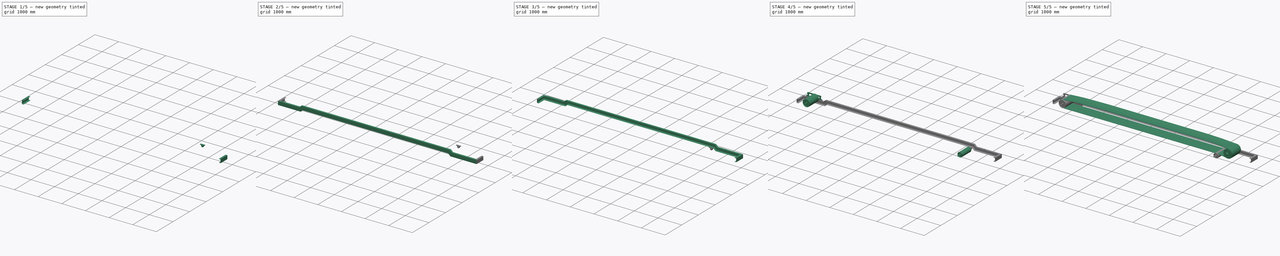
[diagram: build sequence overview — one tinted view per stage of 5, left to right]
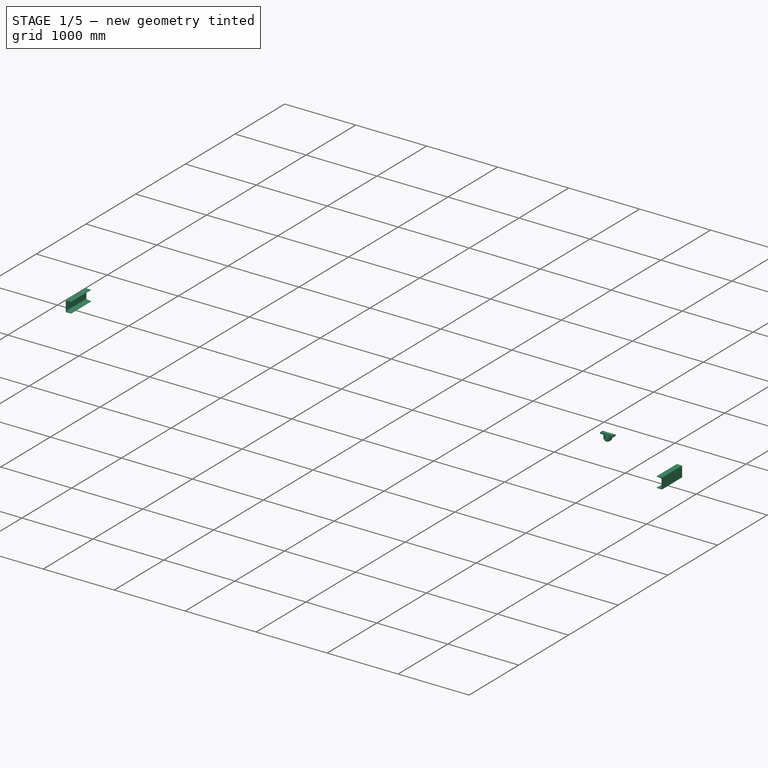
[diagram: stage 1 of 5 — iso view after this stage's code; geometry added in this stage tinted green]
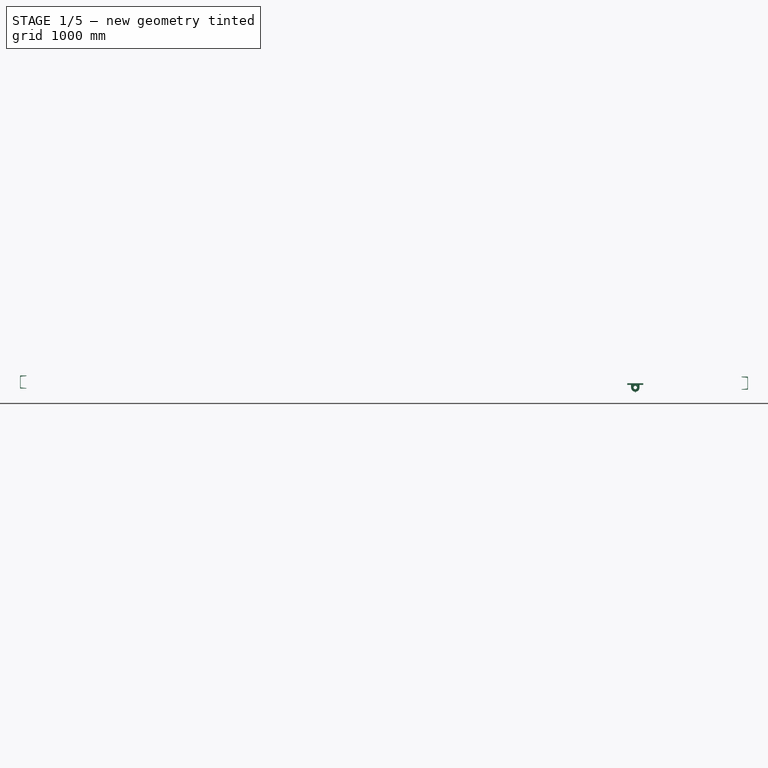
[diagram: stage 1 of 5 — front view after this stage's code; geometry added in this stage tinted green]
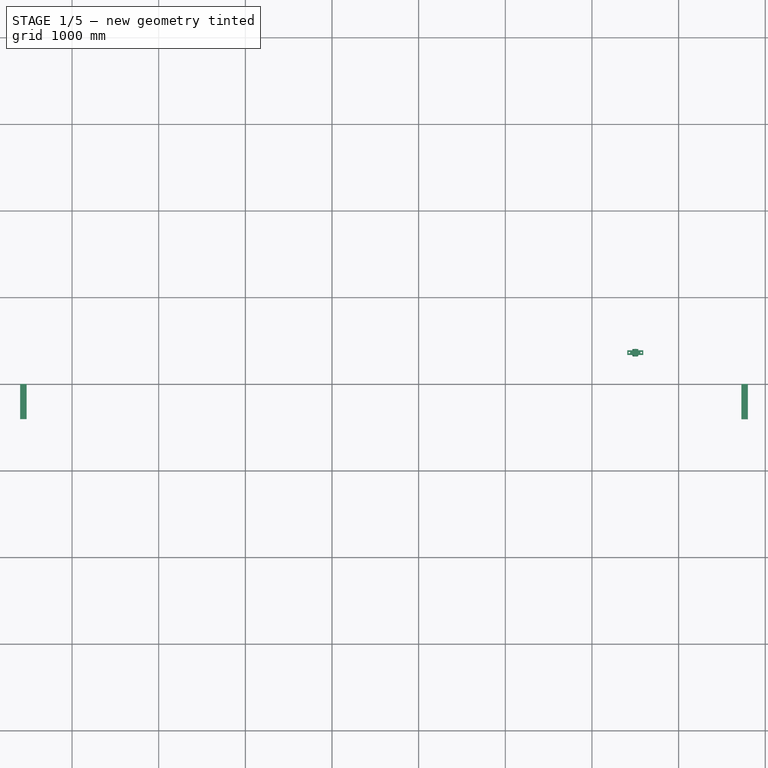
[diagram: stage 1 of 5 — top view after this stage's code; geometry added in this stage tinted green]
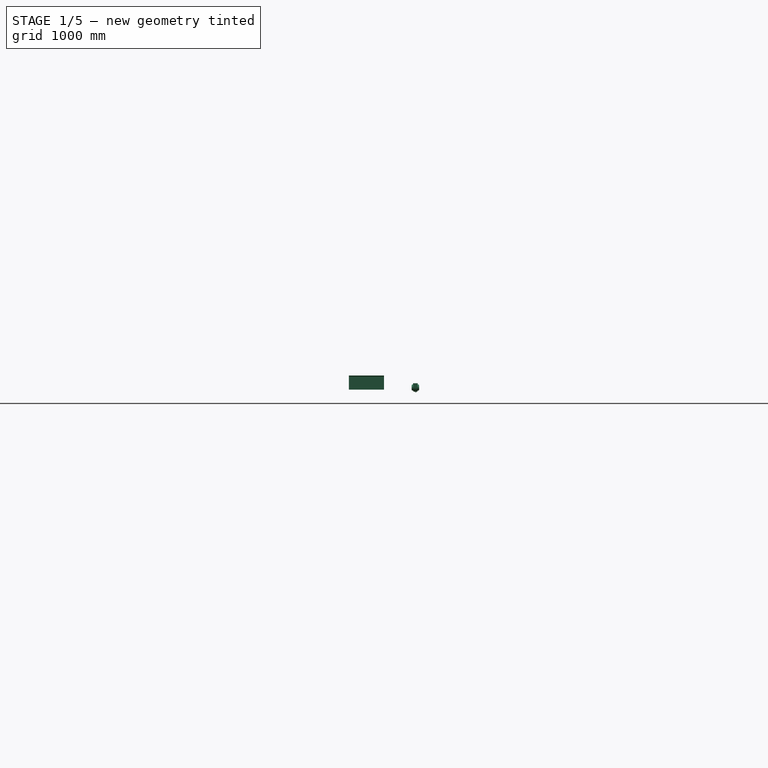
[diagram: stage 1 of 5 — right view after this stage's code; geometry added in this stage tinted green]
FCSTD DOCUMENT  (FreeCAD 0.21R33668 +26 (Git))
Label: BeltCv500_Assy_motorpully
License: All rights reserved
LicenseURL: http://en.wikipedia.org/wiki/All_rights_reserved
objects: Sketcher::SketchObject×13, Part::Extrusion×7, Part::Feature×6, Part::FeaturePython×5, PartDesign::Body×4, Part::Mirroring×3, Part::Sweep×2, App::Part×2, Part::MultiFuse×2, Spreadsheet::Sheet×1
note: 42 computed .brp shape members not serialized (recipe doc carries the construction recipe); baked Part::Feature solids carry a one-line shape summary decoded from their .brp

FEATURE [Part::FeaturePython] ChannelSteel  # WARN: FeaturePython — macro-defined, semantics opaque (R4)
  B = 75
  H = 150
  L = 1000
  Placement = pos=(-600,0,-249) rot=(0,0,1;0rad)
  Solid = false
  g0 = 7.85
  mass = 0
  size = 3
  standard = SS
  t1 = 6.5
  t2 = 10
FEATURE [Part::Extrusion] Extrude006
  Base = -> ChannelSteel
  Dir = (0,1,0)
  DirMode = 2
  FaceMakerClass = Part::FaceMakerBullseye
  LengthFwd = 405
  LengthRev = 0
  Reversed = true
  Solid = false
  Symmetric = false
  expr: LengthFwd = Spreadsheet.B12 / 2
FEATURE [Part::FeaturePython] ChannelSteel002  # WARN: FeaturePython — macro-defined, semantics opaque (R4)
  B = 75
  H = 150
  L = 1000
  Placement = pos=(7800,0,-112) rot=(0,1,0;3.14159rad)
  Solid = false
  g0 = 7.85
  mass = 0
  size = 3
  standard = SS
  t1 = 6.5
  t2 = 10
  expr: .Placement.Base.x = Spreadsheet.C0 + 800
FEATURE [Part::Extrusion] Extrude007
  Base = -> ChannelSteel002
  Dir = (0,1,0)
  DirMode = 2
  FaceMakerClass = Part::FaceMakerBullseye
  LengthFwd = 405
  LengthRev = 0
  Reversed = true
  Solid = false
  Symmetric = false
FEATURE [Part::Mirroring] Part__Mirroring001  label="UCP208FC (Mirror #3)"
  Base = (0,0,0)
  Normal = (0,1,0)
  Source = -> Part__Feature003
FEATURE [Part::Feature] Carrier_500
  Placement = pos=(1000,-395,18) rot=(0,0,1;1.5708rad)
  shape: bbox 190 x 790 x 240.8 mm, 128 faces, 3 solids (baked)
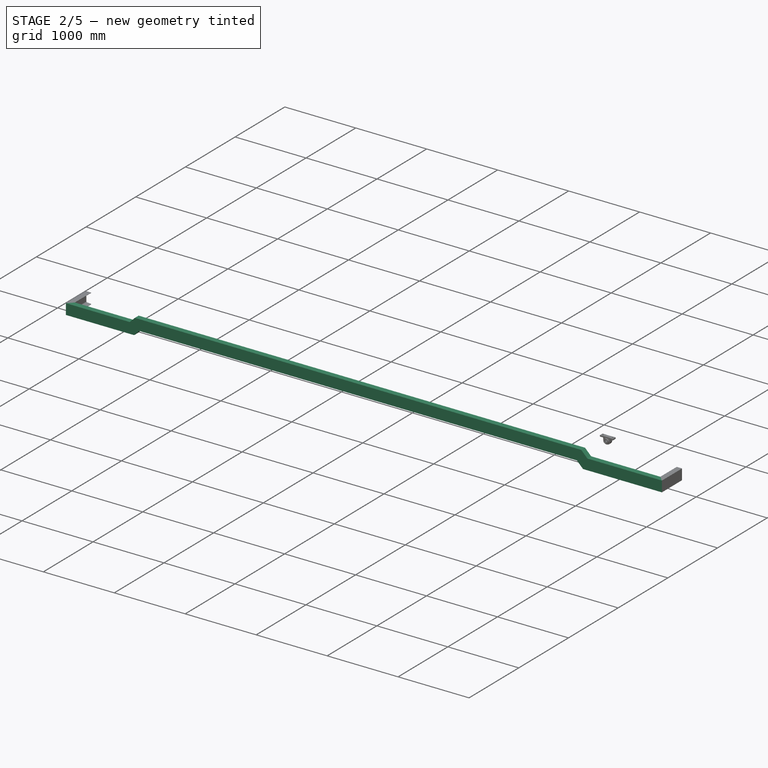
[diagram: stage 2 of 5 — iso view after this stage's code; geometry added in this stage tinted green]
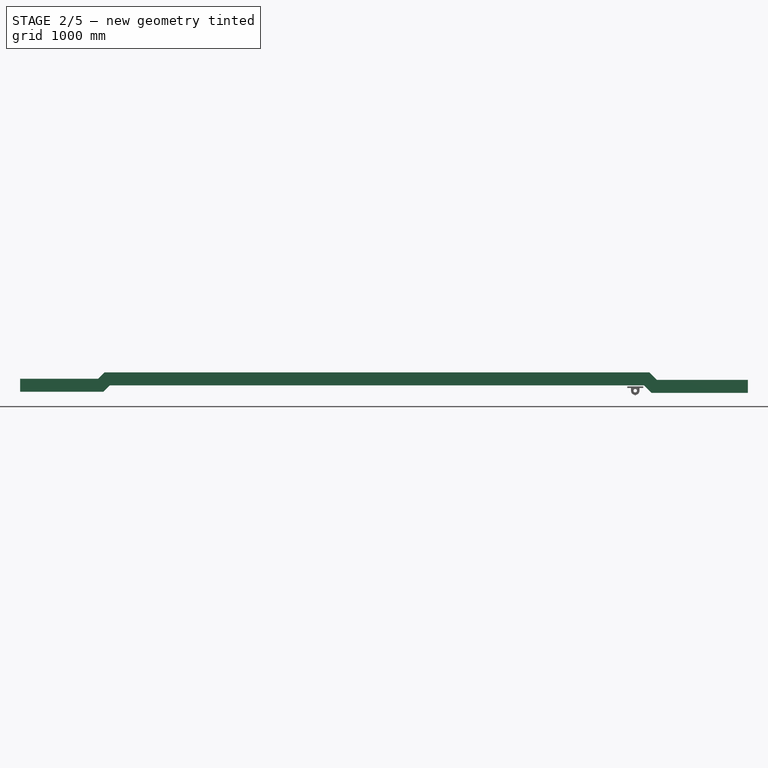
[diagram: stage 2 of 5 — front view after this stage's code; geometry added in this stage tinted green]
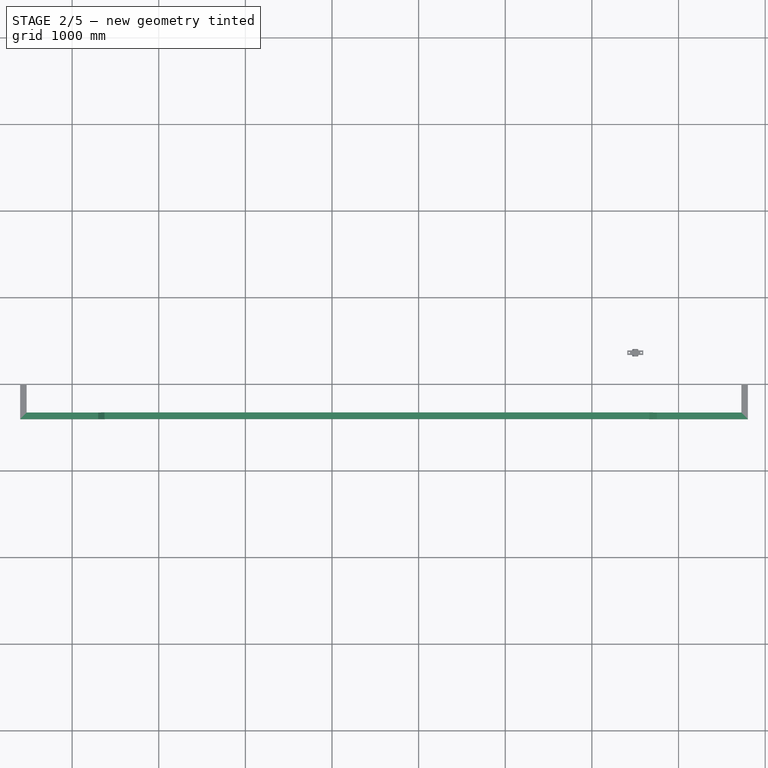
[diagram: stage 2 of 5 — top view after this stage's code; geometry added in this stage tinted green]
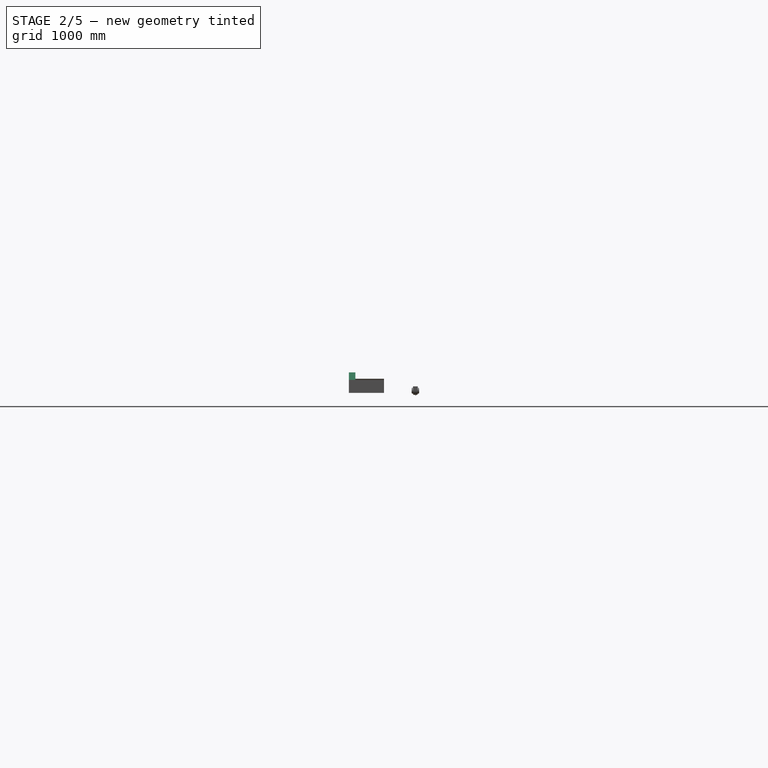
[diagram: stage 2 of 5 — right view after this stage's code; geometry added in this stage tinted green]
FEATURE [PartDesign::Body] Body003
  Origin = -> Origin
FEATURE [Sketcher::SketchObject] Sketch011
  FullyConstrained = true
  MapMode = 5
  Placement = pos=(0,0,0) rot=(1,0,0;1.5708rad)
  Support = -> [XZ_Plane]
  expr: Constraints[15] = Spreadsheet.C0
  sketch-geometry (6):
    g0: LineSegment StartX=-600 StartY=-99 StartZ=0 EndX=300 EndY=-99 EndZ=0
    g1: LineSegment StartX=300 StartY=-99 StartZ=0 EndX=373 EndY=-26 EndZ=0
    g2: LineSegment StartX=373 StartY=-26 StartZ=0 EndX=6664 EndY=-26 EndZ=0
    g3: LineSegment StartX=6664 StartY=-26 StartZ=0 EndX=6750 EndY=-112 EndZ=0
    g4: LineSegment StartX=6750 StartY=-112 StartZ=0 EndX=7800 EndY=-112 EndZ=0
    g5: LineSegment StartX=0 StartY=0 StartZ=0 EndX=7000 EndY=0 EndZ=0
  constraints (19):
    c: Horizontal(g0)
    c: Coincident(g0,g1)
    c: Coincident(g1,g2)
    c: Horizontal(g2)
    c: Coincident(g2,g3)
    c: Coincident(g3,g4)
    c: Horizontal(g4)
    c: DistanceX(g0,g-1) = 600
    c: DistanceX(g-1,g0) = 300
    c: Angle(g1,g0) = 2.35619
    c: DistanceY(g0,g-1) = 99
    c: Angle(g4,g3) = 2.35619
    c: PointOnObject(g5,g-1)
    c: Coincident(g5,g-1)
    c: Distance(g5,g4) = 112
    c: DistanceX(g5,g5) = 7000
    c: DistanceX(g5,g4) = 800
    c: DistanceX(g3,g5) = 250
    c: DistanceY(g0,g1) = 73
FEATURE [Part::Sweep] Sweep001
  Frenet = false
  Placement = pos=(0,-405,0) rot=(0,0,1;0rad)
  Sections = -> [ChannelSteel001]
  Solid = true
  Spine = -> Sketch011 [Edge1,Edge2,Edge3,Edge4,Edge5]
  Transition = 1
  expr: .Placement.Base.y = -Spreadsheet.B12 / 2
FEATURE [Part::MultiFuse] Fusion
  Refine = true
  Shapes = -> [Sweep001,Extrude006]
FEATURE [Part::MultiFuse] Fusion001
  Refine = true
  Shapes = -> [Fusion,Extrude007]
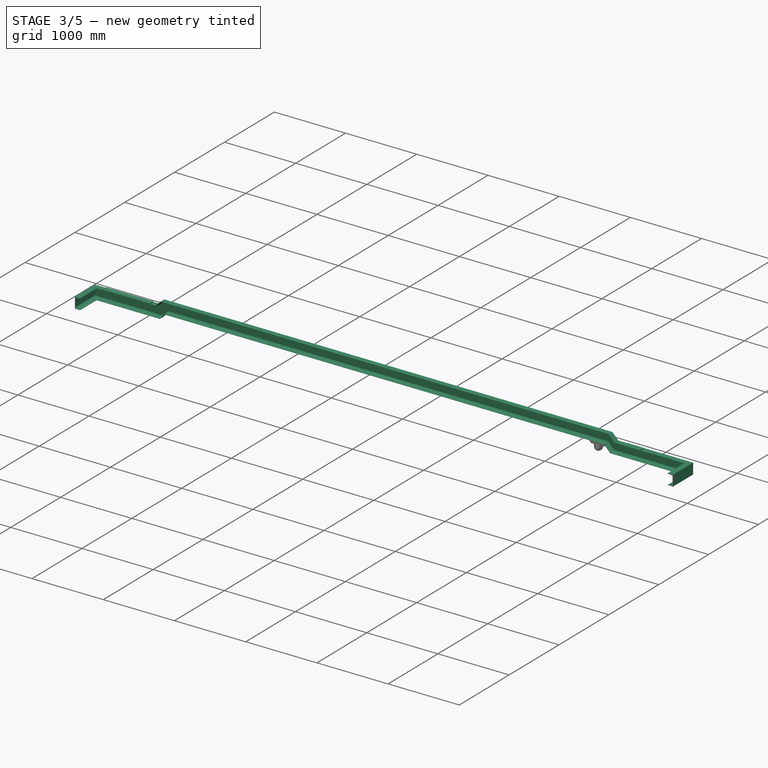
[diagram: stage 3 of 5 — iso view after this stage's code; geometry added in this stage tinted green]
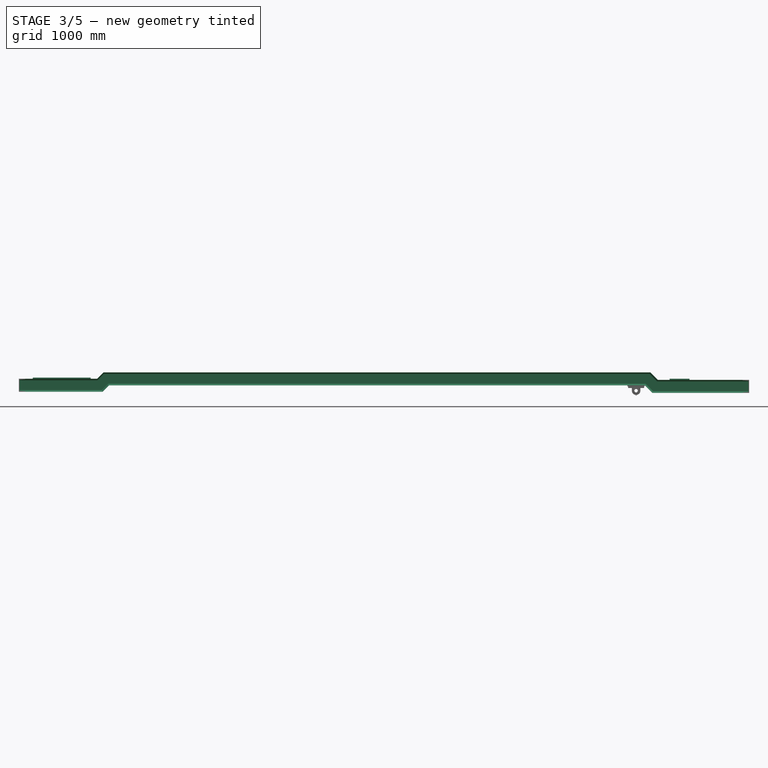
[diagram: stage 3 of 5 — front view after this stage's code; geometry added in this stage tinted green]
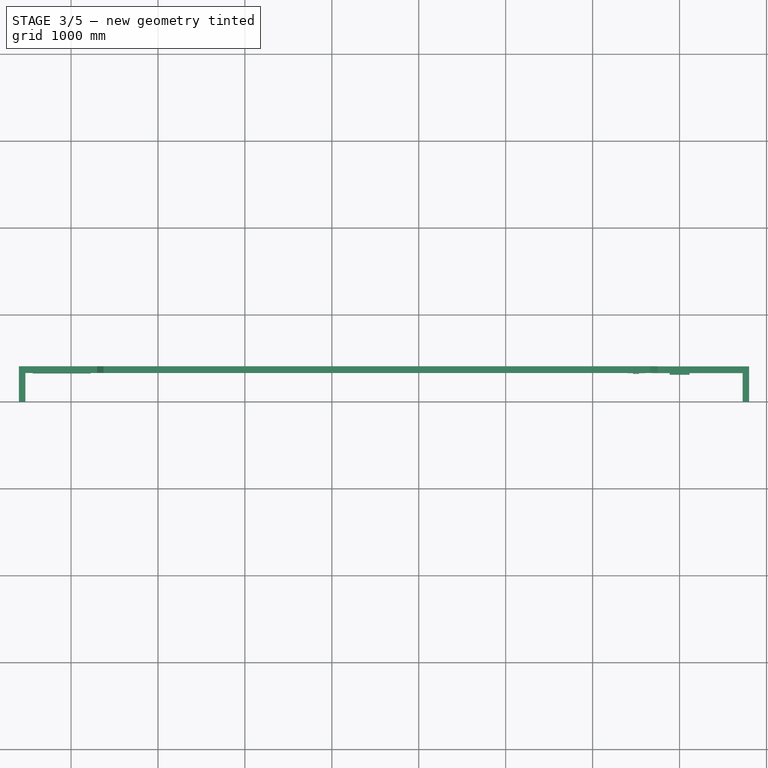
[diagram: stage 3 of 5 — top view after this stage's code; geometry added in this stage tinted green]
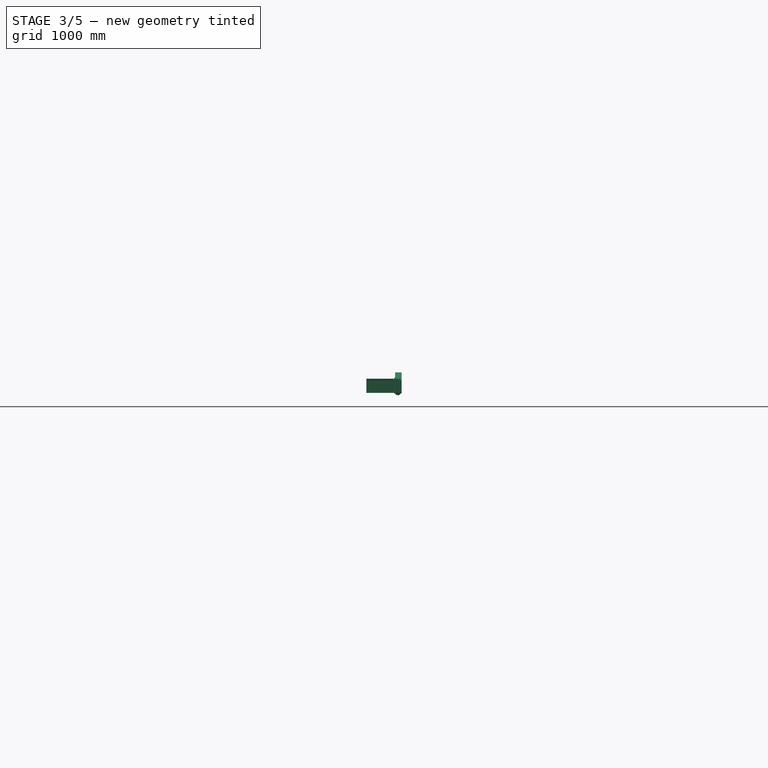
[diagram: stage 3 of 5 — right view after this stage's code; geometry added in this stage tinted green]
FEATURE [Sketcher::SketchObject] Sketch012
  FullyConstrained = true
  MapMode = 5
  Placement = pos=(0,-405,-99) rot=(0,0,1;0rad)
  Support = -> [Sweep001]
  sketch-geometry (4):
    g0: LineSegment StartX=-440 StartY=8 StartZ=0 EndX=225 EndY=8 EndZ=0
    g1: LineSegment StartX=225 StartY=8 StartZ=0 EndX=225 EndY=83 EndZ=0
    g2: LineSegment StartX=225 StartY=83 StartZ=0 EndX=-440 EndY=83 EndZ=0
    g3: LineSegment StartX=-440 StartY=83 StartZ=0 EndX=-440 EndY=8 EndZ=0
  constraints (12):
    c: Coincident(g0,g1)
    c: Coincident(g1,g2)
    c: Coincident(g2,g3)
    c: Coincident(g3,g0)
    c: Horizontal(g0)
    c: Horizontal(g2)
    c: Vertical(g1)
    c: Vertical(g3)
    c: DistanceY(g1,g1) = 75
    c: DistanceY(g-1,g0) = 8
    c: DistanceX(g-1,g0) = 225
    c: DistanceX(g0,g0) = 665
FEATURE [Part::Extrusion] Extrude003
  Base = -> Sketch012
  Dir = (0,0,1)
  DirMode = 2
  FaceMakerClass = Part::FaceMakerBullseye
  LengthFwd = 12
  LengthRev = 0
  Solid = true
  Symmetric = false
FEATURE [Sketcher::SketchObject] Sketch013
  FullyConstrained = false
  MapMode = 5
  Placement = pos=(0,-405,-112) rot=(0,0,1;0rad)
  Support = -> [Sweep001]
  expr: Constraints[9] = Spreadsheet.C0
  sketch-geometry (5):
    g0: LineSegment StartX=6885 StartY=16.2326 StartZ=0 EndX=7115 EndY=16.2326 EndZ=0
    g1: LineSegment StartX=7115 StartY=16.2326 StartZ=0 EndX=7115 EndY=96.2326 EndZ=0
    g2: LineSegment StartX=7115 StartY=96.2326 StartZ=0 EndX=6885 EndY=96.2326 EndZ=0
    g3: LineSegment StartX=6885 StartY=96.2326 StartZ=0 EndX=6885 EndY=16.2326 EndZ=0
    g4: LineSegment StartX=7000 StartY=284.577 StartZ=0 EndX=7000 EndY=-153.677 EndZ=0
  constraints (13):
    c: Coincident(g0,g1)
    c: Coincident(g1,g2)
    c: Coincident(g2,g3)
    c: Coincident(g3,g0)
    c: Horizontal(g0)
    c: Horizontal(g2)
    c: Vertical(g1)
    c: Vertical(g3)
    c: Vertical(g4)
    c: DistanceX(g-2,g4) = 7000
    c: DistanceY(g1,g1) = 80
    c: DistanceX(g0,g0) = 230
    c: DistanceX(g4,g0) = 115
FEATURE [Part::Extrusion] Extrude004
  Base = -> Sketch013
  Dir = (0,0,1)
  DirMode = 2
  FaceMakerClass = Part::FaceMakerBullseye
  LengthFwd = 12
  LengthRev = 0
  Solid = true
  Symmetric = false
FEATURE [Sketcher::SketchObject] Sketch014
  FullyConstrained = false
  MapMode = 5
  Placement = pos=(0,-405,-176) rot=(1,0,0;3.14159rad)
  Support = -> [Sweep001]
  expr: Constraints[13] = Spreadsheet.C0 - 500
  sketch-geometry (5):
    g0: LineSegment StartX=6400 StartY=-9 StartZ=0 EndX=6600 EndY=-9 EndZ=0
    g1: LineSegment StartX=6600 StartY=-9 StartZ=0 EndX=6600 EndY=-79 EndZ=0
    g2: LineSegment StartX=6600 StartY=-79 StartZ=0 EndX=6400 EndY=-79 EndZ=0
    g3: LineSegment StartX=6400 StartY=-79 StartZ=0 EndX=6400 EndY=-9 EndZ=0
    g4: LineSegment StartX=6500 StartY=33.7597 StartZ=0 EndX=6500 EndY=-194.785 EndZ=0
  constraints (14):
    c: Coincident(g0,g1)
    c: Coincident(g1,g2)
    c: Coincident(g2,g3)
    c: Coincident(g3,g0)
    c: Horizontal(g0)
    c: Horizontal(g2)
    c: Vertical(g1)
    c: Vertical(g3)
    c: Vertical(g4)
    c: DistanceX(g0,g0) = 200
    c: DistanceY(g3,g3) = 70
    c: DistanceX(g4,g0) = 100
    c: DistanceY(g-1,g0) = -9
    c: DistanceX(g-1,g4) = 6500
FEATURE [Part::Extrusion] Extrude005
  Base = -> Sketch014
  Dir = (0,0,-1)
  DirMode = 2
  FaceMakerClass = Part::FaceMakerBullseye
  LengthFwd = 12
  LengthRev = 0
  Solid = true
  Symmetric = false
FEATURE [App::Part] Part  label="本体"
  Group = -> [Extrude004,Extrude003,Extrude005,Extrude006,Extrude007,ChannelSteel,ChannelSteel002,Fusion,ChannelSteel001,Sweep001,Sketch011,Sketch013,Sketch014,Sketch012,Fusion001]
  Origin = -> Origin006
FEATURE [Part::Mirroring] Part__Mirroring  label="本体 (Mirror #2)"
  Base = (0,0,0)
  Normal = (0,1,0)
  Source = -> Part
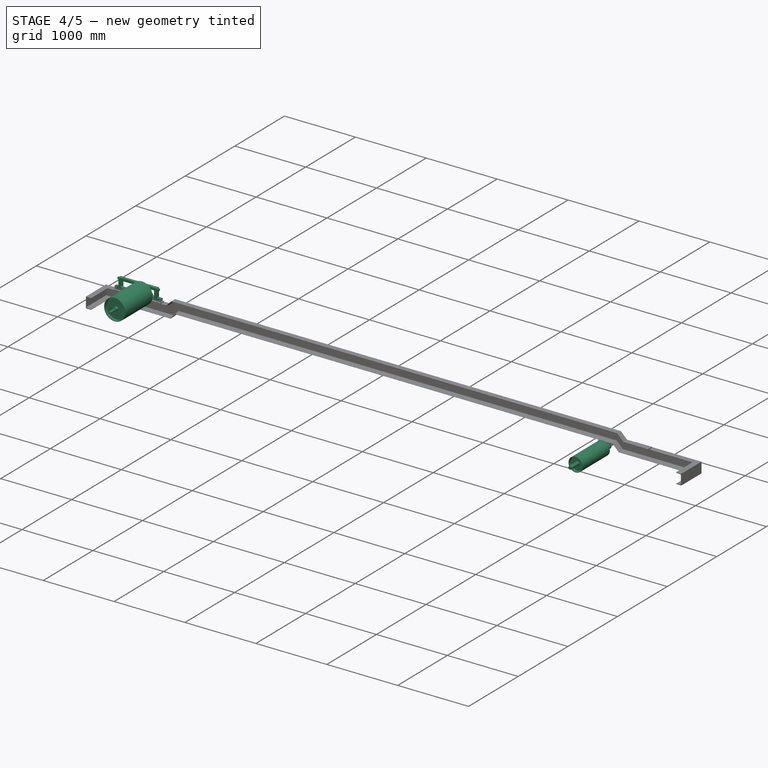
[diagram: stage 4 of 5 — iso view after this stage's code; geometry added in this stage tinted green]
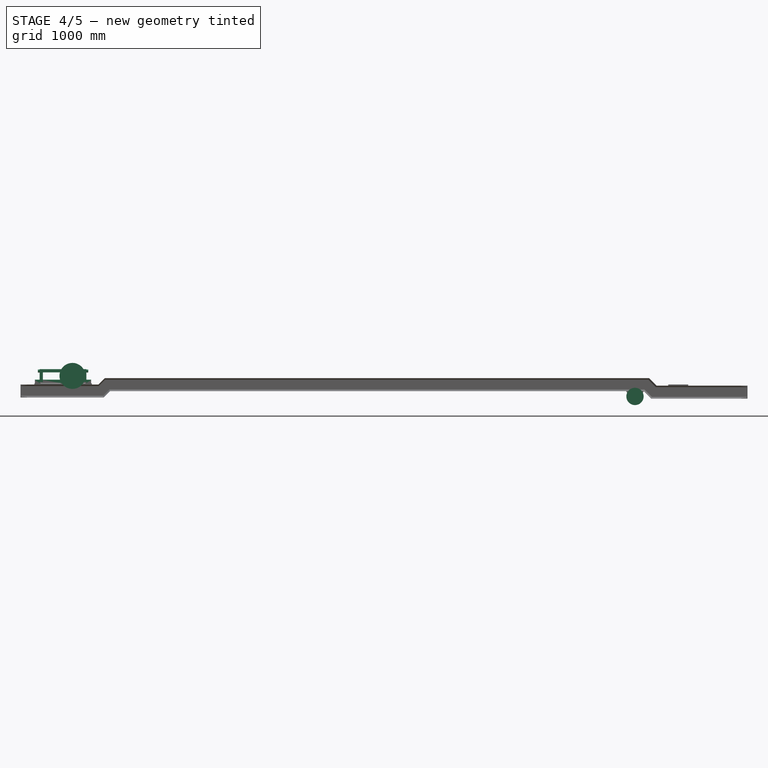
[diagram: stage 4 of 5 — front view after this stage's code; geometry added in this stage tinted green]
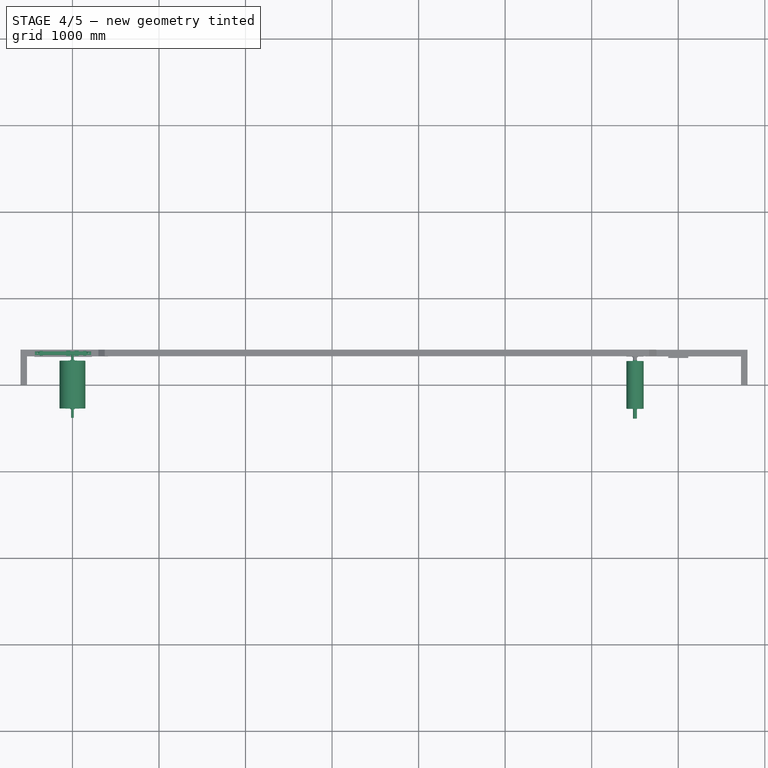
[diagram: stage 4 of 5 — top view after this stage's code; geometry added in this stage tinted green]
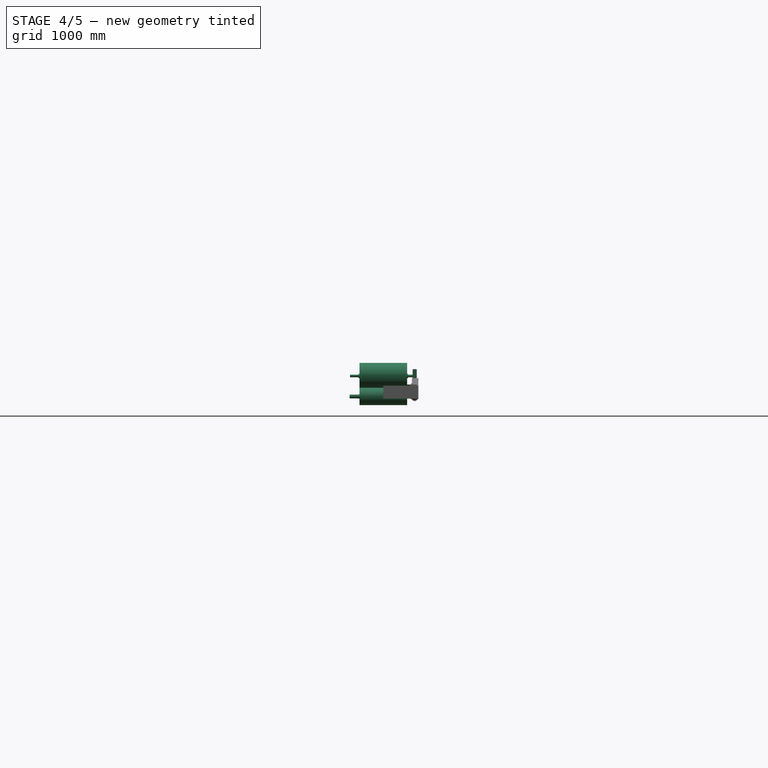
[diagram: stage 4 of 5 — right view after this stage's code; geometry added in this stage tinted green]
FEATURE [Part::FeaturePython] Take_upPulley  # WARN: FeaturePython — macro-defined, semantics opaque (R4)
  A = 50
  B = 100
  C = 570
  D = 300
  E = 0
  L = 550
  Placement = pos=(0,0,0) rot=(0,0,1;1.5708rad)
  d1 = 50
  d2 = 30
  d3 = 0
  t1 = 9
  t2 = 9
  t3 = 8
  t4 = 8
  expr: B = (Spreadsheet.B12 - (Spreadsheet.B0 + 70)) / 2 - 20
  expr: C = Spreadsheet.B0 + 70
  expr: L = Spreadsheet.B0 + 50
FEATURE [Part::FeaturePython] BendPulley  # WARN: FeaturePython — macro-defined, semantics opaque (R4)
  A = 50
  B = 103.5
  C = 570
  D = 200
  E = 0
  L = 550
  Placement = pos=(6500,1.79e-13,-237.18) rot=(0,0,-1;1.5708rad)
  d1 = 50
  d2 = 45
  d3 = 0
  t1 = 9
  t2 = 9
  t3 = 8
  t4 = 8
  expr: .Placement.Base.x = Spreadsheet.C0 - 500
  expr: C = L + 20
  expr: L = Spreadsheet.B0 + 50
FEATURE [Part::Feature] Part__Feature003  label="UCP208FC"
  Placement = pos=(6500,-362,-237.18) rot=(0,0.707107,-0.707107;3.14159rad)
  shape: bbox 184 x 86 x 106.1 mm, 117 faces (baked)
  expr: .Placement.Base.x = Spreadsheet.C0 - 500
FEATURE [PartDesign::Body] Body001
  Origin = -> Origin004
  Placement = pos=(6652,-620.5,-5.82e-14) rot=(0,0.707107,-0.707107;3.14159rad)
  expr: .Placement.Base.x = Spreadsheet.C0 + 152 - 500
FEATURE [Sketcher::SketchObject] Sketch010
  FullyConstrained = true
  MapMode = 5
  Placement = pos=(295,0,0) rot=(1,0,0;1.5708rad)
  Support = -> [Part__Feature002]
FEATURE [PartDesign::Body] Body002
  Origin = -> Origin005
  Placement = pos=(0,-405,0) rot=(0,0,1;0rad)
  expr: .Placement.Base.y = -Spreadsheet.B12 / 2
FEATURE [Part::Mirroring] Mirror002  label="UCTL206J-300-0 (mirrored)"
  Base = (0,-1.42e-14,160)
  Normal = (0,-1,0)
  Source = -> UCTL206J_300_0
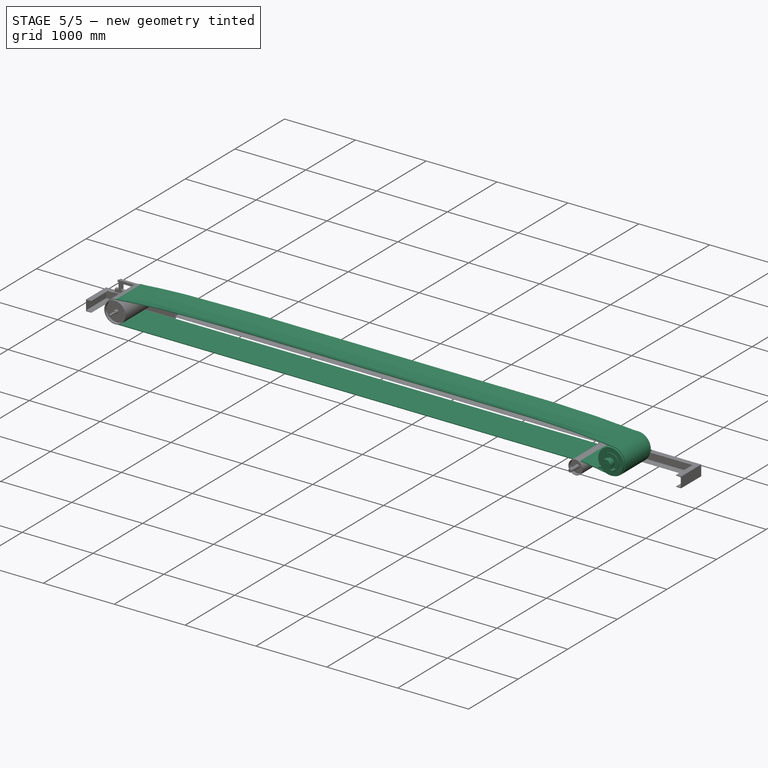
[diagram: stage 5 of 5 — iso view after this stage's code; geometry added in this stage tinted green]
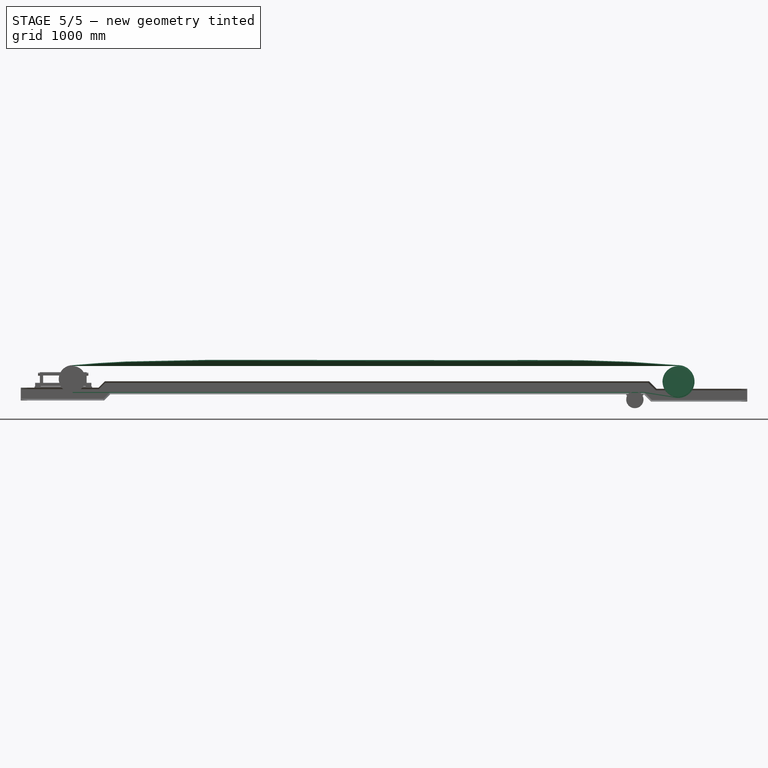
[diagram: stage 5 of 5 — front view after this stage's code; geometry added in this stage tinted green]
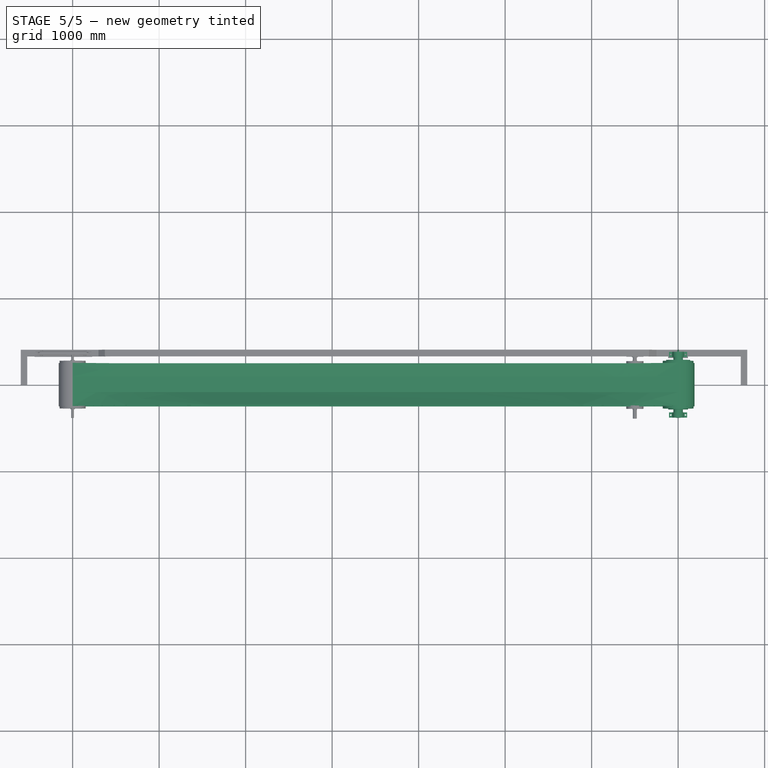
[diagram: stage 5 of 5 — top view after this stage's code; geometry added in this stage tinted green]
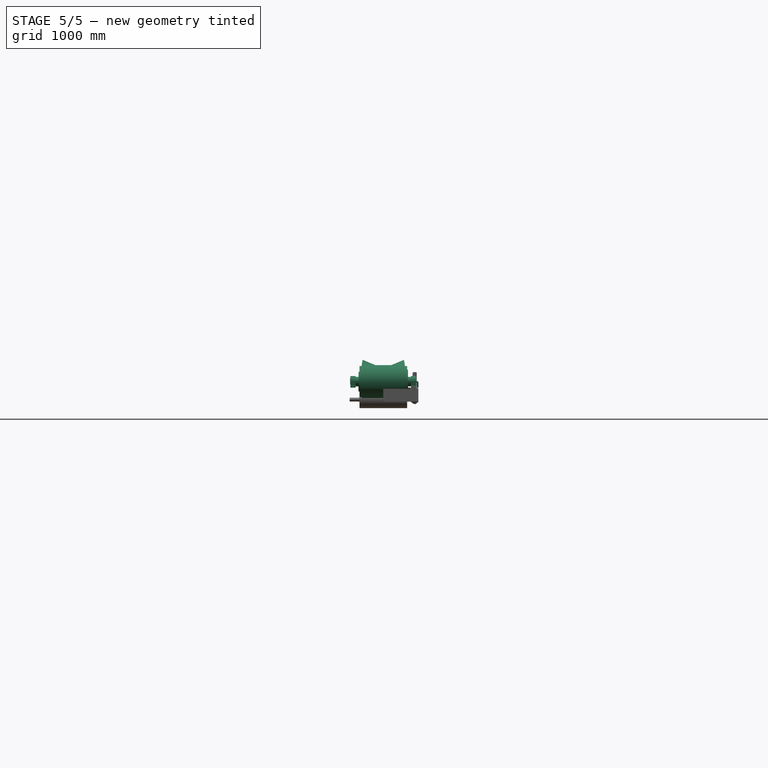
[diagram: stage 5 of 5 — right view after this stage's code; geometry added in this stage tinted green]
FEATURE [Sketcher::SketchObject] Sketch
  FullyConstrained = true
  Placement = pos=(0,0,0) rot=(0.57735,0.57735,0.57735;2.0944rad)
  expr: Constraints[1] = Spreadsheet.B0
  expr: Constraints[2] = Spreadsheet.D0 / 2
  sketch-geometry (1):
    g0: LineSegment StartX=-250 StartY=180 StartZ=0 EndX=250 EndY=180 EndZ=0
  constraints (3):
    c: Symmetric(g0,g0,g-2)
    c: DistanceX(g0,g0) = 500
    c: Distance(g-1,g0) = 180
FEATURE [Sketcher::SketchObject] Sketch001
  FullyConstrained = true
  Placement = pos=(7000,0,0) rot=(0.57735,0.57735,0.57735;2.0944rad)
  expr: .Placement.Base.x = Spreadsheet.C0
  expr: Constraints[1] = Spreadsheet.B0
  expr: Constraints[2] = Spreadsheet.D0 / 2
  sketch-geometry (1):
    g0: LineSegment StartX=-250 StartY=180 StartZ=0 EndX=250 EndY=180 EndZ=0
  constraints (3):
    c: Symmetric(g0,g0,g-2)
    c: DistanceX(g0,g0) = 500
    c: Distance(g-1,g0) = 180
FEATURE [Sketcher::SketchObject] Sketch002
  FullyConstrained = true
  Placement = pos=(1000,0,0) rot=(0.57735,0.57735,0.57735;2.0944rad)
  expr: Constraints[5] = Spreadsheet.b2
  expr: Constraints[6] = Spreadsheet.b2
  expr: Constraints[7] = Spreadsheet.D0 / 2
  expr: Constraints[8] = Spreadsheet.b1
  sketch-geometry (3):
    g0: LineSegment StartX=-240.351 StartY=234.723 StartZ=0 EndX=-90 EndY=180 EndZ=0
    g1: LineSegment StartX=-90 StartY=180 StartZ=0 EndX=90 EndY=180 EndZ=0
    g2: LineSegment StartX=90 StartY=180 StartZ=0 EndX=240.351 EndY=234.723 EndZ=0
  constraints (9):
    c: Coincident(g0,g1)
    c: Coincident(g1,g2)
    c: Angle(g2,g1) = 2.79253
    c: Angle(g1,g0) = 2.79253
    c: Symmetric(g1,g0,g-2)
    c: Distance(g2) = 160
    c: Distance(g0) = 160
    c: DistanceY(g-1,g1) = 180
    c: DistanceX(g1,g1) = 180
FEATURE [Sketcher::SketchObject] Sketch003
  FullyConstrained = true
  Placement = pos=(6000,0,0) rot=(0.57735,0.57735,0.57735;2.0944rad)
  expr: .Placement.Base.x = Spreadsheet.C0 - 1000
  expr: Constraints[5] = Spreadsheet.b2
  expr: Constraints[6] = Spreadsheet.b2
  expr: Constraints[7] = Spreadsheet.D0 / 2
  expr: Constraints[8] = Spreadsheet.b1
  sketch-geometry (3):
    g0: LineSegment StartX=-240.351 StartY=234.723 StartZ=0 EndX=-90 EndY=180 EndZ=0
    g1: LineSegment StartX=-90 StartY=180 StartZ=0 EndX=90 EndY=180 EndZ=0
    g2: LineSegment StartX=90 StartY=180 StartZ=0 EndX=240.351 EndY=234.723 EndZ=0
  constraints (9):
    c: Coincident(g0,g1)
    c: Coincident(g1,g2)
    c: Angle(g2,g1) = 2.79253
    c: Angle(g1,g0) = 2.79253
    c: Symmetric(g1,g0,g-2)
    c: Distance(g2) = 160
    c: Distance(g0) = 160
    c: DistanceY(g-1,g1) = 180
    c: DistanceX(g1,g1) = 180
FEATURE [Sketcher::SketchObject] Sketch004
  FullyConstrained = true
  Placement = pos=(7000,0,0) rot=(1,0,0;1.5708rad)
  expr: .Placement.Base.x = Spreadsheet.C0
  expr: Constraints[0] = Spreadsheet.D0
  expr: Constraints[12] = Spreadsheet.C0
  expr: Constraints[14] = Spreadsheet.Ls
  expr: Constraints[2] = Spreadsheet.d1
  expr: Constraints[8] = Spreadsheet.d2 / 2
  sketch-geometry (6):
    g0: ArcOfCircle CenterX=0 CenterY=0 CenterZ=0 NormalX=0 NormalY=0 NormalZ=1 AngleXU=0 Radius=180 StartAngle=4.55494 EndAngle=7.85398
    g1: ArcOfCircle CenterX=-7000 CenterY=30 CenterZ=0 NormalX=0 NormalY=0 NormalZ=1 AngleXU=0 Radius=150 StartAngle=1.5708 EndAngle=4.71239
    g2: LineSegment StartX=-7000 StartY=180 StartZ=0 EndX=0 EndY=180 EndZ=0
    g3: LineSegment StartX=-28.2248 StartY=-177.773 StartZ=0 EndX=-384.32 EndY=-121.237 EndZ=0
    g4: LineSegment StartX=-400 StartY=-120 StartZ=0 EndX=-7000 EndY=-120 EndZ=0
    g5: ArcOfCircle CenterX=-400 CenterY=-220 CenterZ=0 NormalX=0 NormalY=0 NormalZ=1 AngleXU=0 Radius=100 StartAngle=1.41334 EndAngle=1.5708
  constraints (17):
    c: Diameter(g0) = 360
    c: Coincident(g-1,g0)
    c: Diameter(g1) = 300
    c: Horizontal(g2)
    c: PointOnObject(g3,g0)
    c: Horizontal(g4)
    c: Tangent(g3,g5) = -1.5708
    c: Tangent(g4,g5) = -1.5708
    c: Radius(g5) = 100
    c: Coincident(g1,g4)
    c: Coincident(g0,g2)
    c: Tangent(g0,g3) = 1.5708
    c: DistanceX(g1,g0) = 7000
    c: Vertical(g0,g0)
    c: DistanceX(g5,g0) = 400
    c: Vertical(g1,g1)
    c: Tangent(g1,g2) = 1.5708
FEATURE [Sketcher::SketchObject] Sketch005
  FullyConstrained = true
  Placement = pos=(7000,0,-30) rot=(1,0,0;1.5708rad)
  expr: .Placement.Base.x = Spreadsheet.C0
  expr: Constraints[0] = Spreadsheet.D0
  expr: Constraints[10] = Spreadsheet.Ls
  expr: Constraints[20] = Spreadsheet.t0
  expr: Constraints[22] = Spreadsheet.t0
  expr: Constraints[29] = (Spreadsheet.D0 - Spreadsheet.d1) / 2
  expr: Constraints[2] = Spreadsheet.d1
  expr: Constraints[6] = Spreadsheet.d2 / 2
  expr: Constraints[8] = Spreadsheet.C0
  sketch-geometry (12):
    g0: ArcOfCircle CenterX=0 CenterY=0 CenterZ=0 NormalX=0 NormalY=0 NormalZ=1 AngleXU=0 Radius=180 StartAngle=4.55494 EndAngle=7.85398
    g1: ArcOfCircle CenterX=-7000 CenterY=30 CenterZ=0 NormalX=0 NormalY=0 NormalZ=1 AngleXU=0 Radius=150 StartAngle=1.5708 EndAngle=4.71239
    g2: LineSegment StartX=-28.2245 StartY=-177.773 StartZ=0 EndX=-384.32 EndY=-121.237 EndZ=0
    g3: LineSegment StartX=-400 StartY=-120 StartZ=0 EndX=-7000 EndY=-120 EndZ=0
    g4: ArcOfCircle CenterX=-400 CenterY=-220 CenterZ=0 NormalX=0 NormalY=0 NormalZ=1 AngleXU=0 Radius=100 StartAngle=1.41334 EndAngle=1.5708
    g5: ArcOfCircle CenterX=-7000 CenterY=30 CenterZ=0 NormalX=0 NormalY=0 NormalZ=1 AngleXU=0 Radius=160 StartAngle=1.5708 EndAngle=4.71239
    g6: LineSegment StartX=-7000 StartY=-130 StartZ=0 EndX=-400 EndY=-130 EndZ=0
    g7: ArcOfCircle CenterX=-400 CenterY=-220 CenterZ=0 NormalX=0 NormalY=0 NormalZ=1 AngleXU=0 Radius=90 StartAngle=1.41334 EndAngle=1.5708
    g8: LineSegment StartX=-385.888 StartY=-131.113 StartZ=0 EndX=-29.7927 EndY=-187.65 EndZ=0
    g9: ArcOfCircle CenterX=0 CenterY=0 CenterZ=0 NormalX=0 NormalY=0 NormalZ=1 AngleXU=0 Radius=190 StartAngle=4.55494 EndAngle=7.85398
    g10: LineSegment StartX=0 StartY=180 StartZ=0 EndX=0 EndY=190 EndZ=0
    g11: LineSegment StartX=-7000 StartY=180 StartZ=0 EndX=-7000 EndY=190 EndZ=0
  constraints (32):
    c: Diameter(g0) = 360
    c: Coincident(g-1,g0)
    c: Diameter(g1) = 300
    c: Horizontal(g3)
    c: Tangent(g2,g4) = -1.5708
    c: Tangent(g3,g4) = -1.5708
    c: Radius(g4) = 100
    c: Coincident(g1,g3)
    c: DistanceX(g1,g0) = 7000
    c: Vertical(g0,g0)
    c: DistanceX(g4,g0) = 400
    c: Vertical(g1,g1)
    c: Coincident(g5,g1)
    c: Tangent(g5,g6) = -1.5708
    c: Tangent(g6,g7) = 1.5708
    c: Tangent(g8,g9) = -1.5708
    c: PointOnObject(g9,g-2)
    c: Coincident(g10,g0)
    c: Coincident(g10,g9)
    c: Coincident(g9,g0)
    c: DistanceY(g10,g10) = 10
    c: Coincident(g4,g7)
    c: DistanceY(g5,g1) = 10
    c: Vertical(g1,g5)
    c: Coincident(g11,g1)
    c: Coincident(g11,g5)
    c: Tangent(g7,g8) = 1.5708
    c: Vertical(g1,g1)
    c: Parallel(g8,g2)
    c: DistanceY(g-1,g1) = 30
    c: Parallel(g6,g3)
    c: Coincident(g2,g0)
FEATURE [Sketcher::SketchObject] Sketch006
  FullyConstrained = true
  Placement = pos=(3500,0,0) rot=(0.57735,0.57735,0.57735;2.0944rad)
  expr: .Placement.Base.x = Spreadsheet.C0 / 2
  expr: Constraints[5] = Spreadsheet.b2
  expr: Constraints[6] = Spreadsheet.b2
  expr: Constraints[7] = Spreadsheet.D0 / 2
  expr: Constraints[8] = Spreadsheet.b1
  sketch-geometry (3):
    g0: LineSegment StartX=-240.351 StartY=234.723 StartZ=0 EndX=-90 EndY=180 EndZ=0
    g1: LineSegment StartX=-90 StartY=180 StartZ=0 EndX=90 EndY=180 EndZ=0
    g2: LineSegment StartX=90 StartY=180 StartZ=0 EndX=240.351 EndY=234.723 EndZ=0
  constraints (9):
    c: Coincident(g0,g1)
    c: Coincident(g1,g2)
    c: Angle(g2,g1) = 2.79253
    c: Angle(g1,g0) = 2.79253
    c: Symmetric(g1,g0,g-2)
    c: Distance(g2) = 160
    c: Distance(g0) = 160
    c: DistanceY(g-1,g1) = 180
    c: DistanceX(g1,g1) = 180
FEATURE [Part::Sweep] Sweep
  Frenet = false
  Sections = -> [Sketch,Sketch002,Sketch003,Sketch001,Sketch006]
  Solid = false
  Spine = -> Sketch004 [Edge2]
  Transition = 1
FEATURE [Part::Extrusion] Extrude002
  Base = -> Sweep
  Dir = (0,0,1)
  DirMode = 0
  FaceMakerClass = Part::FaceMakerBullseye
  LengthFwd = 10
  LengthRev = 0
  Placement = pos=(0,0,-30) rot=(0,0,1;0rad)
  Solid = false
  Symmetric = false
FEATURE [Spreadsheet::Sheet] Spreadsheet
  cells = A2='CenterDistance C0; B2(C0)=7000; A3='BeltWidth B0; B3(B0)=500; C3=400; D3=450; E3=500; F3=600; G3=700; H3=750; I3=800; J3=900; K3=1000; A4='Belt b1; B4(b1)=180; C4=145; D4=165; E4=180; F4=210; G4=250; H4=265; I4=280; J4=315; K4=345; A5='Belt b2; B5(b2)==(B3 - B4) / 2; C5==(C3 - C4) / 2; D5==(D3 - D4) / 2; E5==(E3 - E4) / 2; F5==(F3 - F4) / 2; G5==(G3 - G4) / 2; H5==(H3 - H4) / 2; I5==(I3 - I4) / 2; J5==(J3 - J4) / 2; K5==(K3 - K4) / 2; A6='BeltThickness t0; B6(t0)=10; C6=10; D6=10; E6=10; F6=10; G6=10; H6=10; I6=10; J6=10; K6=10; A7='HeadPullyDia D0; B7(D0)=360; C7=300; D7=300; E7=360; F7=360; G7=360; H7=460; I7=460; J7=520; K7=520; A8='TailPullyDia d1; B8(d1)=300; C8=260; D8=260; E8=300; F8=300; G8=300; H8=390; I8=390; J8=440; K8=440; A9='SnapPullyDia d2; B9(d2)=200; C9=200; D9=200; E9=200; F9=200; G9=200; H9=200; I9=200; J9=200; K9=200; A10='SnapPully Ls; B10(Ls)=400; C10=400; D10=400; E10=400; F10=500; G10=500; H10=500; I10=500; J10=500; K10=500; A11='SnapPully h0; B11(h0)=160; C11=180; D11=180; E11=160; F11=180; G11=180; H11=180; I11=180; J11=180; K11=180; A12='hontaihaba W; B12=810; C12=710; D12=760; E12=810; F12=910; G12=910; H12=910; I12=910; J12=910; K12=910; A13='hontai _h; B13=103.5; C13=103.5; D13=103.5; E13=103.5; F13=103.5; G13=103.5; H13=103.5; I13=103.5; J13=103.5; K13=103.5; A14='hontai_z; B14=16; C14=16; D14=16; E14=16; F14=16; G14=16; H14=16; I14=16; J14=16; K14=16; A15='takeup_x; B15=-403.47; C15=-403.47; D15=-403.47; E15=-403.47; F15=-403.47; G15=-403.47; H15=-403.47; I15=-403.47; J15=-403.47; K15=-403.47; A16='takeup_y; B16=-362.8; C16=-362.8; D16=-362.8; E16=-362.8; F16=-410; G16=-410; H16=-410; I16=-410; J16=-410; K16=-410; A17='takeup_z; B17=-87; C17=-87; D17=-87; E17=-87; F17=-57; G17=-57; H17=-57; I17=-57; J17=-57; K17=-57; A18='carrierPitch  cp; B18=1000; C18=1000; D18=1000; E18=1000; F18=1000; G18=1000; H18=1000; I18=1000; J18=1000; K18=1000; A19='returnPitch rp; B19=1500; C19=1500; D19=1500; E19=1500; F19=1500; G19=1500; H19=1500; I19=1500; J19=1500; K19=1500
FEATURE [Part::FeaturePython] CPM2_4145  # WARN: FeaturePython — macro-defined, semantics opaque (R4)
  A = 550
  B1 = 500
  B2 = 600
  C = 70
  D = 360
  D1 = 356
  D2 = 228
  D3 = 278
  E = 170
  F = 0
  G1 = 30
  G2 = 30
  H = 33
  L = 863
  M = 210
  N1 = 60
  N2 = 60
  P = 75
  Placement = pos=(7000,0,-30) rot=(0,0,1;1.5708rad)
  R = 20
  a = 11
  b = 11
  d = 18
  key = 5
  expr: .Placement.Base.x = Spreadsheet.C0
FEATURE [Sketcher::SketchObject] Sketch007
  FullyConstrained = true
  MapMode = 5
  Placement = pos=(0,0,14) rot=(1,0,0;1.5708rad)
  expr: Constraints[11] = Spreadsheet.C0 + 1000
  sketch-geometry (5):
    g0: LineSegment StartX=-600 StartY=-99 StartZ=0 EndX=250 EndY=-99 EndZ=0
    g1: LineSegment StartX=250 StartY=-99 StartZ=0 EndX=309 EndY=-40 EndZ=0
    g2: LineSegment StartX=309 StartY=-40 StartZ=0 EndX=6728 EndY=-40 EndZ=0
    g3: LineSegment StartX=6728 StartY=-40 StartZ=0 EndX=6800 EndY=-112 EndZ=0
    g4: LineSegment StartX=6800 StartY=-112 StartZ=0 EndX=8000 EndY=-112 EndZ=0
  constraints (16):
    c: Horizontal(g0)
    c: Coincident(g0,g1)
    c: Coincident(g1,g2)
    c: Horizontal(g2)
    c: Coincident(g2,g3)
    c: Coincident(g3,g4)
    c: Horizontal(g4)
    c: DistanceX(g0,g-1) = 600
    c: Angle(g1,g0) = 2.35619
    c: DistanceX(g-1,g0) = 250
    c: Angle(g4,g3) = 2.35619
    c: DistanceX(g-1,g4) = 8000
    c: DistanceX(g4,g4) = 1200
    c: DistanceY(g0,g-1) = 99
    c: DistanceY(g0,g1) = 59
    c: DistanceY(g-1,g3) = -112
FEATURE [Part::Feature] Part__Feature  label="UCT206-Nipple"
  Placement = pos=(361.536,98.1965,4.96833) rot=(0.519988,-0.677661,0.519988;1.95044rad)
  shape: bbox 18.99 x 12.27 x 15.73 mm, 44 faces (baked)
FEATURE [Part::Feature] Part__Feature001  label="UCT206-Housing2"
  Placement = pos=(403.465,87,0) rot=(0.51998,-0.677674,0.51998;0rad)
  shape: bbox 145.2 x 140 x 60 mm, 86 faces (baked)
FEATURE [Part::Feature] Part__Feature002  label="UCTL206-300-Frame"
  Placement = pos=(295,87,0) rot=(0,0,1;0rad)
  shape: bbox 650 x 166 x 56.5 mm, 312 faces (baked)
FEATURE [App::Part] UCTL206J_300_0  label="UCTL206J-300-0"
  Group = -> [Part__Feature,Part__Feature001,Part__Feature002]
  Origin = -> Origin001
  Placement = pos=(-403.47,-362.8,-87) rot=(1,0,0;1.5708rad)
  expr: .Placement.Base.x = Spreadsheet.B15
  expr: .Placement.Base.y = Spreadsheet.B16
FEATURE [Part::Feature] ChannelSteel001
  Placement = pos=(-600,-2.2e-14,-249) rot=(0,0,1;0rad)
  shape: bbox 2e-07 x 75 x 150 mm, 0 faces, 0 solids (baked)
FEATURE [PartDesign::Body] Body
  Origin = -> Origin003
  Placement = pos=(7000,-1.7604e-12,-16) rot=(0,0,1;4.71239rad)
  expr: .Placement.Base.x = Spreadsheet.C0
FEATURE [Part::Extrusion] Extrude
  Base = -> Sketch005
  Dir = (0,-1,2e-16)
  DirMode = 2
  FaceMakerClass = Part::FaceMakerBullseye
  LengthFwd = 500
  LengthRev = 0
  Solid = true
  Symmetric = true
  expr: LengthFwd = Spreadsheet.B0
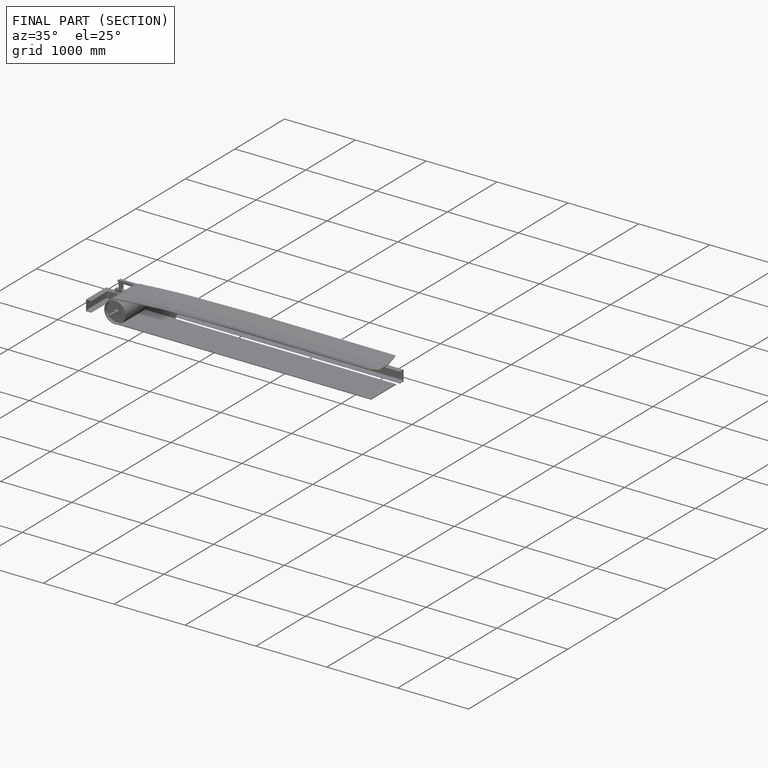
[diagram: finished part — half-section view (interior)]
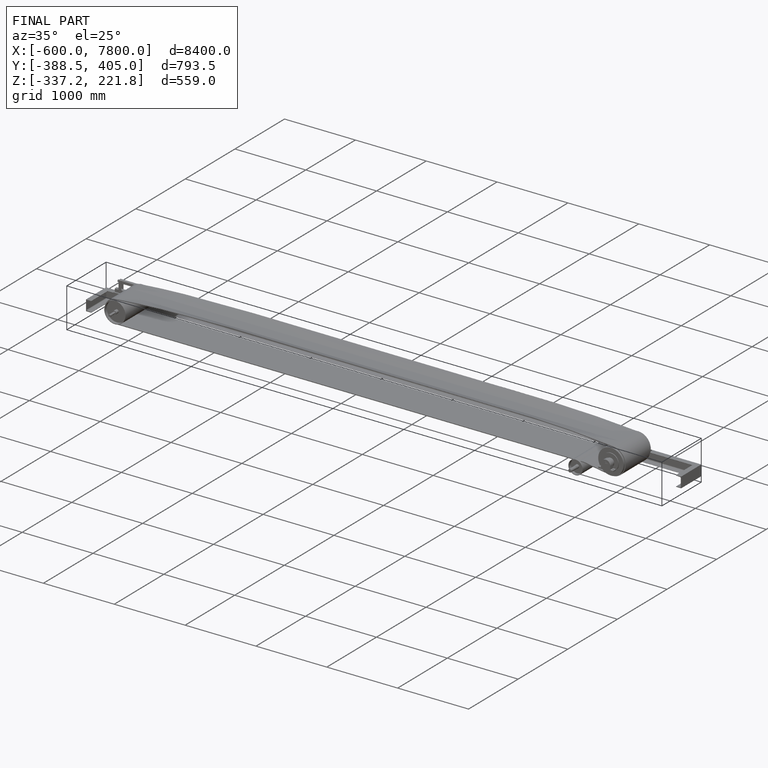
[diagram: finished part — iso view with bounding-box wireframe]
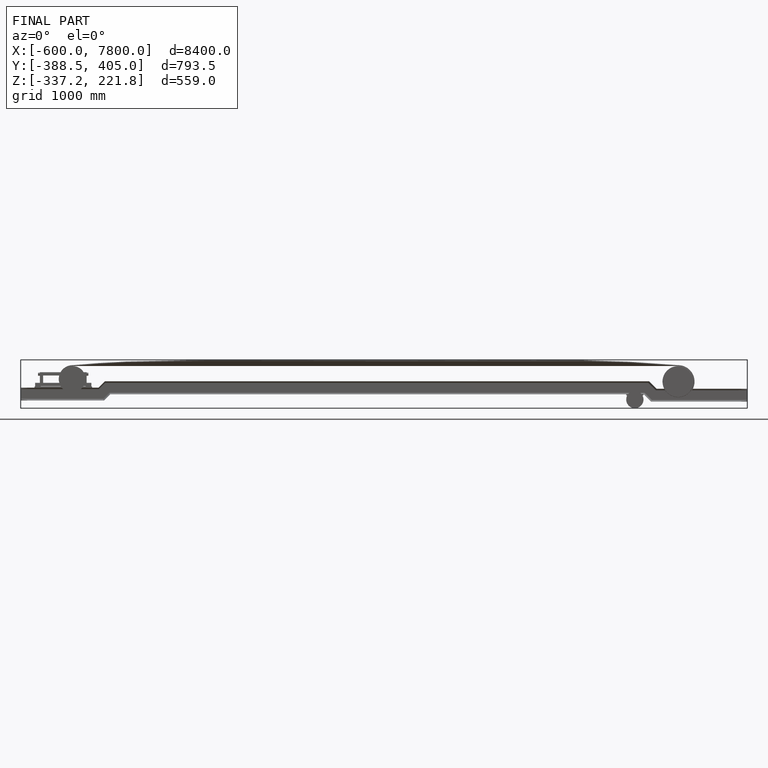
[diagram: finished part — front view with bounding-box wireframe]
